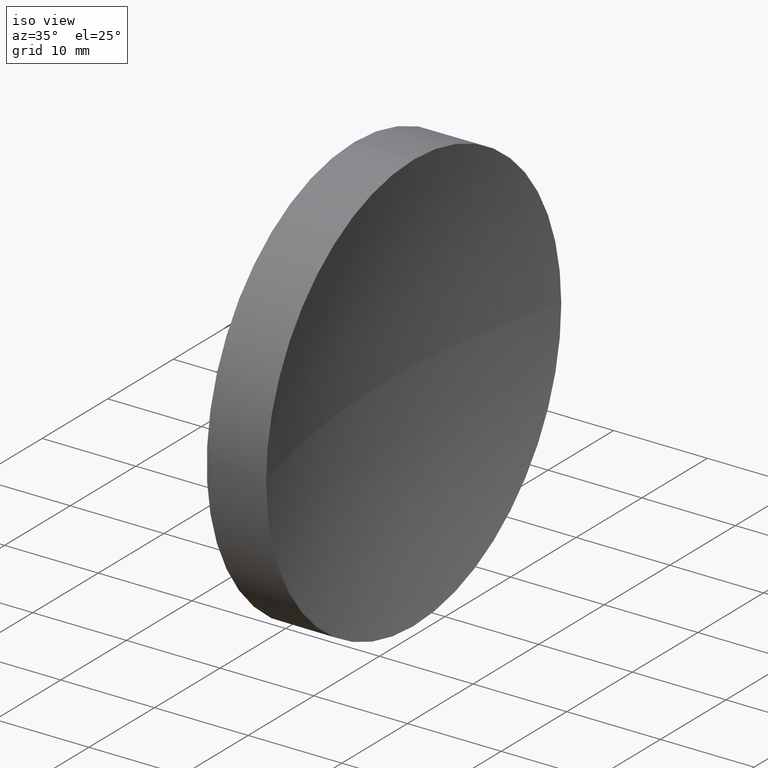
[diagram: clean part render]
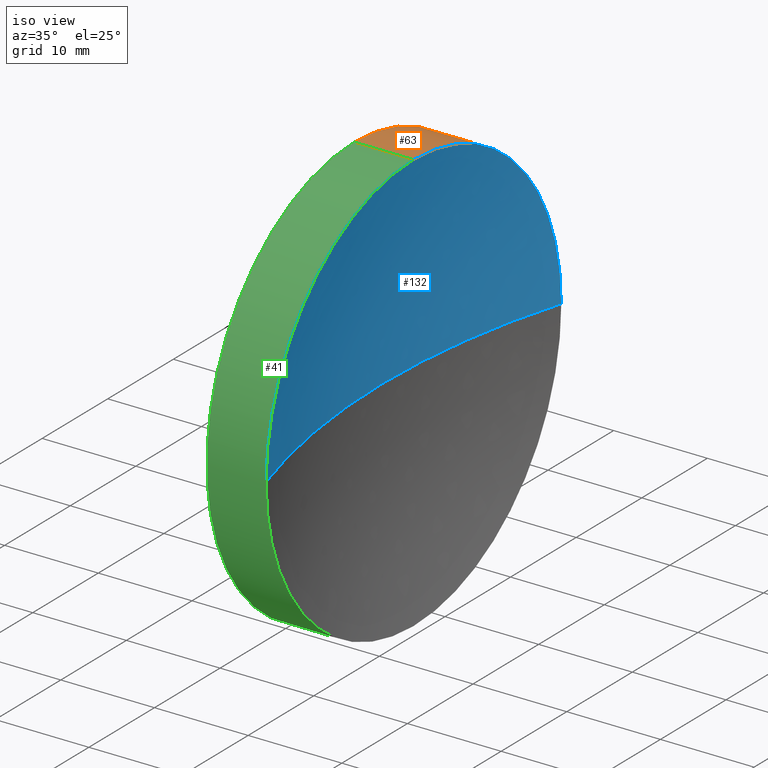
[diagram: same view with three faces highlighted in distinct colors, each labeled with its STEP entity id]
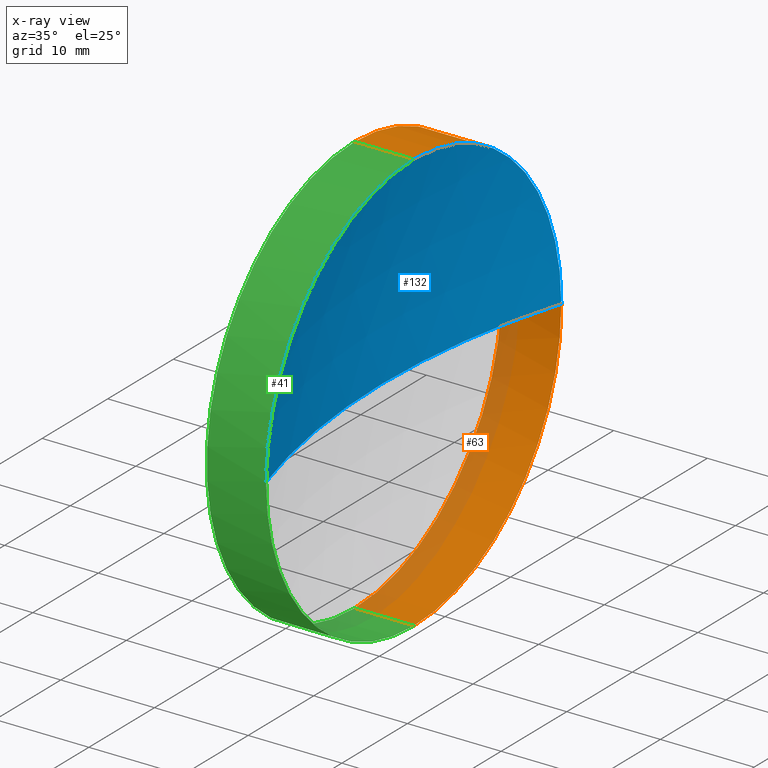
[diagram: x-ray of the same camera — body ghosted, the three highlighted faces saturated]
A machine part, iso view with three faces highlighted in distinct colors.
The next image is the same camera in x-ray (body ghosted, the three faces saturated) — at least one of them is partly hidden behind the body in this view.
Their STEP definitions:

[orange] entity #63 — the highlighted cylindrical surface (partial cylindrical patch) has radius 22.5 mm, axis along (-1, -0, -0).
#4 = CIRCLE ( 'NONE', #156, 22.49999999999997900 ) ;
#5 = VERTEX_POINT ( 'NONE', #124 ) ;
#8 = VERTEX_POINT ( 'NONE', #137 ) ;
#11 = EDGE_LOOP ( 'NONE', ( #85, #121, #83, #55, #184 ) ) ;
#13 = CARTESIAN_POINT ( 'NONE',  ( 113.7198928399500900, 65.15563045701519200, 22.49999999999997900 ) ) ;
#17 = CARTESIAN_POINT ( 'NONE',  ( 113.7198928399500900, 65.15563045701519200, 0.0000000000000000000 ) ) ;
#19 = CARTESIAN_POINT ( 'NONE',  ( 105.6218371238301200, 65.15563045701519200, 0.0000000000000000000 ) ) ;
#30 = DIRECTION ( 'NONE',  ( 0.0000000000000000000, 0.0000000000000000000, 1.000000000000000000 ) ) ;
#37 = VECTOR ( 'NONE', #45, 1000.000000000000000 ) ;
#42 = VERTEX_POINT ( 'NONE', #171 ) ;
#44 = AXIS2_PLACEMENT_3D ( 'NONE', #127, #153, #30 ) ;
#45 = DIRECTION ( 'NONE',  ( -1.000000000000000000, -0.0000000000000000000, -0.0000000000000000000 ) ) ;
#48 = CARTESIAN_POINT ( 'NONE',  ( 120.0570080214153000, 65.15563045701519200, 0.0000000000000000000 ) ) ;
#55 = ORIENTED_EDGE ( 'NONE', *, *, #162, .F. ) ;
#60 = DIRECTION ( 'NONE',  ( -1.000000000000000000, -0.0000000000000000000, -0.0000000000000000000 ) ) ;
#63 = ADVANCED_FACE ( 'NONE', ( #131 ), #135, .T. ) ;
#65 = CIRCLE ( 'NONE', #44, 22.49999999999997900 ) ;
#66 = DIRECTION ( 'NONE',  ( 0.0000000000000000000, 0.0000000000000000000, 1.000000000000000000 ) ) ;
#70 = LINE ( 'NONE', #82, #37 ) ;
#74 = EDGE_CURVE ( 'NONE', #5, #42, #65, .T. ) ;
#76 = VERTEX_POINT ( 'NONE', #13 ) ;
#81 = DIRECTION ( 'NONE',  ( 0.0000000000000000000, 0.0000000000000000000, 1.000000000000000000 ) ) ;
#82 = CARTESIAN_POINT ( 'NONE',  ( 105.6218371238301200, 65.15563045701519200, 22.49999999999997900 ) ) ;
#83 = ORIENTED_EDGE ( 'NONE', *, *, #102, .F. ) ;
#85 = ORIENTED_EDGE ( 'NONE', *, *, #74, .T. ) ;
#92 = VERTEX_POINT ( 'NONE', #126 ) ;
#102 = EDGE_CURVE ( 'NONE', #76, #8, #165, .T. ) ;
#104 = VECTOR ( 'NONE', #183, 1000.000000000000000 ) ;
#121 = ORIENTED_EDGE ( 'NONE', *, *, #180, .T. ) ;
#124 = CARTESIAN_POINT ( 'NONE',  ( 120.0570080214153000, 87.65563045701519200, 0.0000000000000000000 ) ) ;
#126 = CARTESIAN_POINT ( 'NONE',  ( 120.0570080214153000, 65.15563045701519200, 22.49999999999997900 ) ) ;
#127 = CARTESIAN_POINT ( 'NONE',  ( 120.0570080214153000, 65.15563045701519200, 0.0000000000000000000 ) ) ;
#130 = DIRECTION ( 'NONE',  ( -1.000000000000000000, -0.0000000000000000000, -0.0000000000000000000 ) ) ;
#131 = FACE_OUTER_BOUND ( 'NONE', #11, .T. ) ;
#135 = CYLINDRICAL_SURFACE ( 'NONE', #147, 22.49999999999997900 ) ;
#137 = CARTESIAN_POINT ( 'NONE',  ( 113.7198928399500900, 65.15563045701519200, -22.49999999999997900 ) ) ;
#139 = AXIS2_PLACEMENT_3D ( 'NONE', #17, #130, #81 ) ;
#143 = DIRECTION ( 'NONE',  ( 0.0000000000000000000, 0.0000000000000000000, 1.000000000000000000 ) ) ;
#147 = AXIS2_PLACEMENT_3D ( 'NONE', #19, #170, #143 ) ;
#153 = DIRECTION ( 'NONE',  ( -1.000000000000000000, -0.0000000000000000000, -0.0000000000000000000 ) ) ;
#156 = AXIS2_PLACEMENT_3D ( 'NONE', #48, #60, #66 ) ;
#162 = EDGE_CURVE ( 'NONE', #92, #76, #70, .T. ) ;
#165 = CIRCLE ( 'NONE', #139, 22.49999999999997900 ) ;
#170 = DIRECTION ( 'NONE',  ( -1.000000000000000000, -0.0000000000000000000, -0.0000000000000000000 ) ) ;
#171 = CARTESIAN_POINT ( 'NONE',  ( 120.0570080214153000, 65.15563045701519200, -22.49999999999997900 ) ) ;
#173 = EDGE_CURVE ( 'NONE', #92, #5, #4, .T. ) ;
#177 = LINE ( 'NONE', #186, #104 ) ;
#180 = EDGE_CURVE ( 'NONE', #42, #8, #177, .T. ) ;
#183 = DIRECTION ( 'NONE',  ( -1.000000000000000000, -0.0000000000000000000, -0.0000000000000000000 ) ) ;
#184 = ORIENTED_EDGE ( 'NONE', *, *, #173, .T. ) ;
#186 = CARTESIAN_POINT ( 'NONE',  ( 105.6218371238301200, 65.15563045701519200, -22.49999999999997900 ) ) ;

[blue] entity #132 — the highlighted spherical surface has radius 77.52 mm.
#2 = CARTESIAN_POINT ( 'NONE',  ( 120.0570080214153000, 42.65563045701520700, -2.755455298081542800E-015 ) ) ;
#4 = CIRCLE ( 'NONE', #156, 22.49999999999997900 ) ;
#5 = VERTEX_POINT ( 'NONE', #124 ) ;
#10 = DIRECTION ( 'NONE',  ( 0.0000000000000000000, 1.224646799147353200E-016, -1.000000000000000000 ) ) ;
#15 = EDGE_CURVE ( 'NONE', #5, #157, #79, .T. ) ;
#20 = SPHERICAL_SURFACE ( 'NONE', #91, 77.51999999999999600 ) ;
#24 = CARTESIAN_POINT ( 'NONE',  ( 194.2398928399500700, 65.15563045701517800, 0.0000000000000000000 ) ) ;
#26 = DIRECTION ( 'NONE',  ( 1.000000000000000000, 0.0000000000000000000, 0.0000000000000000000 ) ) ;
#28 = DIRECTION ( 'NONE',  ( 0.0000000000000000000, 0.0000000000000000000, 1.000000000000000000 ) ) ;
#33 = EDGE_CURVE ( 'NONE', #59, #157, #98, .T. ) ;
#47 = EDGE_LOOP ( 'NONE', ( #50, #120, #125, #164 ) ) ;
#48 = CARTESIAN_POINT ( 'NONE',  ( 120.0570080214153000, 65.15563045701519200, 0.0000000000000000000 ) ) ;
#50 = ORIENTED_EDGE ( 'NONE', *, *, #89, .F. ) ;
#56 = DIRECTION ( 'NONE',  ( 0.0000000000000000000, 1.000000000000000000, 1.224646799147353200E-016 ) ) ;
#59 = VERTEX_POINT ( 'NONE', #2 ) ;
#60 = DIRECTION ( 'NONE',  ( -1.000000000000000000, -0.0000000000000000000, -0.0000000000000000000 ) ) ;
#66 = DIRECTION ( 'NONE',  ( 0.0000000000000000000, 0.0000000000000000000, 1.000000000000000000 ) ) ;
#71 = FACE_OUTER_BOUND ( 'NONE', #47, .T. ) ;
#79 = CIRCLE ( 'NONE', #175, 77.51999999999998200 ) ;
#89 = EDGE_CURVE ( 'NONE', #59, #92, #113, .T. ) ;
#91 = AXIS2_PLACEMENT_3D ( 'NONE', #112, #185, #110 ) ;
#92 = VERTEX_POINT ( 'NONE', #126 ) ;
#98 = CIRCLE ( 'NONE', #167, 77.51999999999999600 ) ;
#106 = CARTESIAN_POINT ( 'NONE',  ( 194.2398928399500700, 65.15563045701517800, 0.0000000000000000000 ) ) ;
#110 = DIRECTION ( 'NONE',  ( 0.0000000000000000000, 1.000000000000000000, 0.0000000000000000000 ) ) ;
#112 = CARTESIAN_POINT ( 'NONE',  ( 194.2398928399500700, 65.15563045701517800, 0.0000000000000000000 ) ) ;
#113 = CIRCLE ( 'NONE', #133, 22.49999999999997900 ) ;
#120 = ORIENTED_EDGE ( 'NONE', *, *, #33, .T. ) ;
#124 = CARTESIAN_POINT ( 'NONE',  ( 120.0570080214153000, 87.65563045701519200, 0.0000000000000000000 ) ) ;
#125 = ORIENTED_EDGE ( 'NONE', *, *, #15, .F. ) ;
#126 = CARTESIAN_POINT ( 'NONE',  ( 120.0570080214153000, 65.15563045701519200, 22.49999999999997900 ) ) ;
#128 = CARTESIAN_POINT ( 'NONE',  ( 116.7198928399500900, 65.15563045701517800, 0.0000000000000000000 ) ) ;
#132 = ADVANCED_FACE ( 'NONE', ( #71 ), #20, .F. ) ;
#133 = AXIS2_PLACEMENT_3D ( 'NONE', #172, #155, #28 ) ;
#136 = DIRECTION ( 'NONE',  ( 0.0000000000000000000, 0.0000000000000000000, 1.000000000000000000 ) ) ;
#155 = DIRECTION ( 'NONE',  ( -1.000000000000000000, -0.0000000000000000000, -0.0000000000000000000 ) ) ;
#156 = AXIS2_PLACEMENT_3D ( 'NONE', #48, #60, #66 ) ;
#157 = VERTEX_POINT ( 'NONE', #128 ) ;
#164 = ORIENTED_EDGE ( 'NONE', *, *, #173, .F. ) ;
#167 = AXIS2_PLACEMENT_3D ( 'NONE', #24, #10, #56 ) ;
#172 = CARTESIAN_POINT ( 'NONE',  ( 120.0570080214153000, 65.15563045701519200, 0.0000000000000000000 ) ) ;
#173 = EDGE_CURVE ( 'NONE', #92, #5, #4, .T. ) ;
#175 = AXIS2_PLACEMENT_3D ( 'NONE', #106, #136, #26 ) ;
#185 = DIRECTION ( 'NONE',  ( 0.0000000000000000000, 0.0000000000000000000, -1.000000000000000000 ) ) ;

[green] entity #41 — the highlighted cylindrical surface (partial cylindrical patch) has radius 22.5 mm, axis along (-1, -0, -0).
#2 = CARTESIAN_POINT ( 'NONE',  ( 120.0570080214153000, 42.65563045701520700, -2.755455298081542800E-015 ) ) ;
#8 = VERTEX_POINT ( 'NONE', #137 ) ;
#9 = EDGE_LOOP ( 'NONE', ( #72, #52, #150, #87, #73 ) ) ;
#13 = CARTESIAN_POINT ( 'NONE',  ( 113.7198928399500900, 65.15563045701519200, 22.49999999999997900 ) ) ;
#14 = DIRECTION ( 'NONE',  ( 0.0000000000000000000, 0.0000000000000000000, 1.000000000000000000 ) ) ;
#16 = CARTESIAN_POINT ( 'NONE',  ( 113.7198928399500900, 65.15563045701519200, 0.0000000000000000000 ) ) ;
#27 = AXIS2_PLACEMENT_3D ( 'NONE', #16, #140, #58 ) ;
#28 = DIRECTION ( 'NONE',  ( 0.0000000000000000000, 0.0000000000000000000, 1.000000000000000000 ) ) ;
#29 = DIRECTION ( 'NONE',  ( -1.000000000000000000, -0.0000000000000000000, -0.0000000000000000000 ) ) ;
#37 = VECTOR ( 'NONE', #45, 1000.000000000000000 ) ;
#41 = ADVANCED_FACE ( 'NONE', ( #46 ), #163, .T. ) ;
#42 = VERTEX_POINT ( 'NONE', #171 ) ;
#45 = DIRECTION ( 'NONE',  ( -1.000000000000000000, -0.0000000000000000000, -0.0000000000000000000 ) ) ;
#46 = FACE_OUTER_BOUND ( 'NONE', #9, .T. ) ;
#52 = ORIENTED_EDGE ( 'NONE', *, *, #144, .T. ) ;
#58 = DIRECTION ( 'NONE',  ( 0.0000000000000000000, 0.0000000000000000000, 1.000000000000000000 ) ) ;
#59 = VERTEX_POINT ( 'NONE', #2 ) ;
#70 = LINE ( 'NONE', #82, #37 ) ;
#72 = ORIENTED_EDGE ( 'NONE', *, *, #180, .F. ) ;
#73 = ORIENTED_EDGE ( 'NONE', *, *, #169, .F. ) ;
#75 = CARTESIAN_POINT ( 'NONE',  ( 105.6218371238301200, 65.15563045701519200, 0.0000000000000000000 ) ) ;
#76 = VERTEX_POINT ( 'NONE', #13 ) ;
#82 = CARTESIAN_POINT ( 'NONE',  ( 105.6218371238301200, 65.15563045701519200, 22.49999999999997900 ) ) ;
#86 = AXIS2_PLACEMENT_3D ( 'NONE', #75, #152, #122 ) ;
#87 = ORIENTED_EDGE ( 'NONE', *, *, #162, .T. ) ;
#89 = EDGE_CURVE ( 'NONE', #59, #92, #113, .T. ) ;
#92 = VERTEX_POINT ( 'NONE', #126 ) ;
#104 = VECTOR ( 'NONE', #183, 1000.000000000000000 ) ;
#107 = CIRCLE ( 'NONE', #181, 22.49999999999997900 ) ;
#113 = CIRCLE ( 'NONE', #133, 22.49999999999997900 ) ;
#122 = DIRECTION ( 'NONE',  ( 0.0000000000000000000, 0.0000000000000000000, 1.000000000000000000 ) ) ;
#126 = CARTESIAN_POINT ( 'NONE',  ( 120.0570080214153000, 65.15563045701519200, 22.49999999999997900 ) ) ;
#133 = AXIS2_PLACEMENT_3D ( 'NONE', #172, #155, #28 ) ;
#137 = CARTESIAN_POINT ( 'NONE',  ( 113.7198928399500900, 65.15563045701519200, -22.49999999999997900 ) ) ;
#138 = CARTESIAN_POINT ( 'NONE',  ( 120.0570080214153000, 65.15563045701519200, 0.0000000000000000000 ) ) ;
#140 = DIRECTION ( 'NONE',  ( -1.000000000000000000, -0.0000000000000000000, -0.0000000000000000000 ) ) ;
#144 = EDGE_CURVE ( 'NONE', #42, #59, #107, .T. ) ;
#150 = ORIENTED_EDGE ( 'NONE', *, *, #89, .T. ) ;
#152 = DIRECTION ( 'NONE',  ( -1.000000000000000000, -0.0000000000000000000, -0.0000000000000000000 ) ) ;
#155 = DIRECTION ( 'NONE',  ( -1.000000000000000000, -0.0000000000000000000, -0.0000000000000000000 ) ) ;
#162 = EDGE_CURVE ( 'NONE', #92, #76, #70, .T. ) ;
#163 = CYLINDRICAL_SURFACE ( 'NONE', #86, 22.49999999999997900 ) ;
#169 = EDGE_CURVE ( 'NONE', #8, #76, #179, .T. ) ;
#171 = CARTESIAN_POINT ( 'NONE',  ( 120.0570080214153000, 65.15563045701519200, -22.49999999999997900 ) ) ;
#172 = CARTESIAN_POINT ( 'NONE',  ( 120.0570080214153000, 65.15563045701519200, 0.0000000000000000000 ) ) ;
#177 = LINE ( 'NONE', #186, #104 ) ;
#179 = CIRCLE ( 'NONE', #27, 22.49999999999997900 ) ;
#180 = EDGE_CURVE ( 'NONE', #42, #8, #177, .T. ) ;
#181 = AXIS2_PLACEMENT_3D ( 'NONE', #138, #29, #14 ) ;
#183 = DIRECTION ( 'NONE',  ( -1.000000000000000000, -0.0000000000000000000, -0.0000000000000000000 ) ) ;
#186 = CARTESIAN_POINT ( 'NONE',  ( 105.6218371238301200, 65.15563045701519200, -22.49999999999997900 ) ) ;